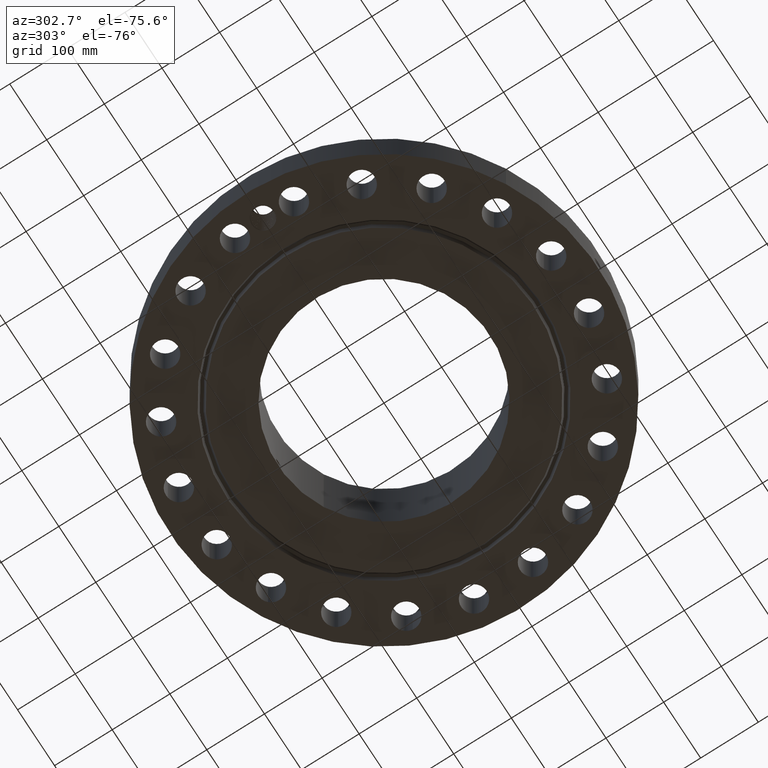
[diagram: clean part render]
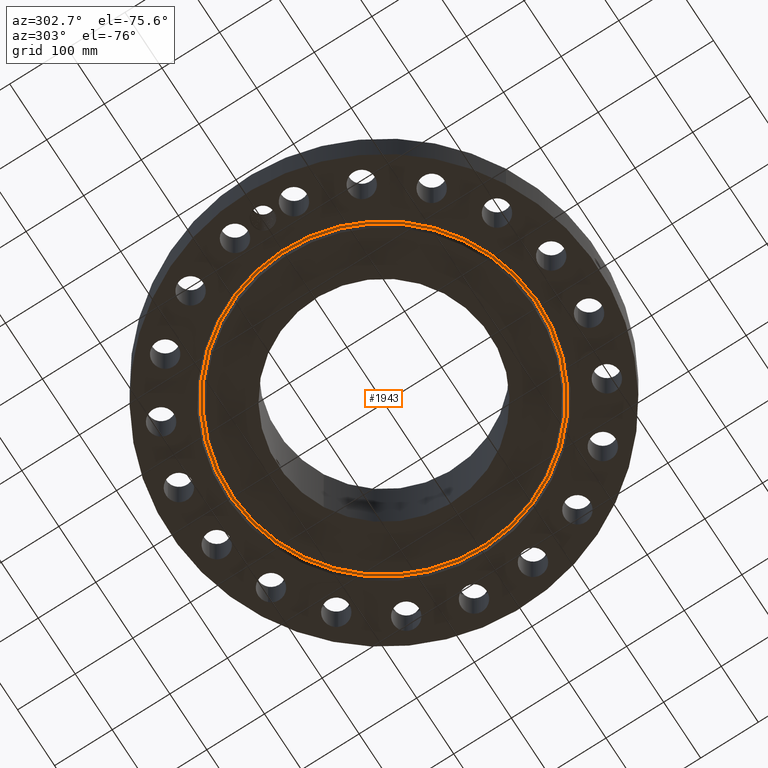
[diagram: same view with one face highlighted and labeled with its STEP entity id]
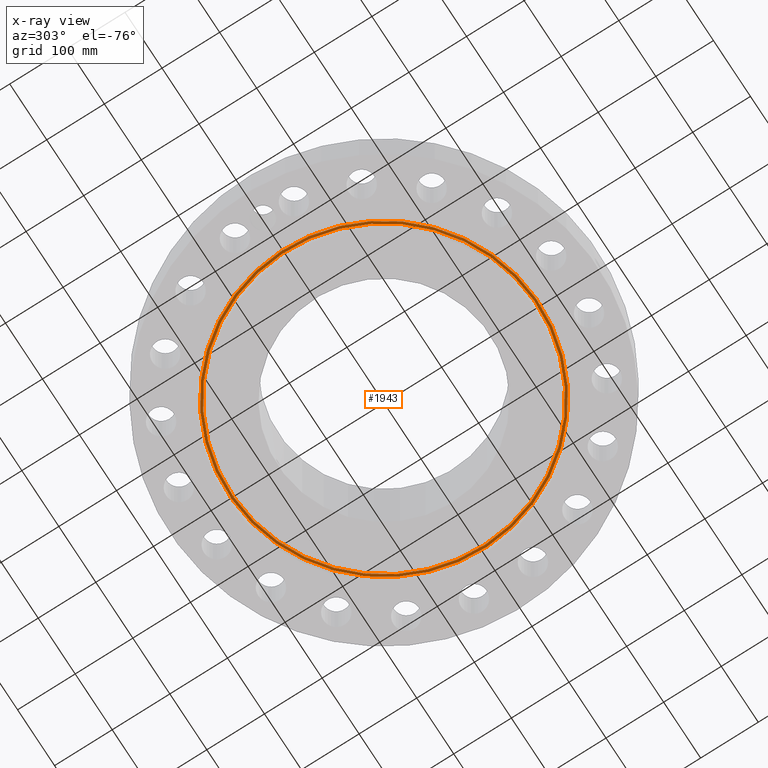
[diagram: x-ray of the same camera — body ghosted, the highlighted face saturated]
A machine part, auxiliary view. The second image highlights one B-rep face of the part: STEP entity #1943.
The next image is the same camera in x-ray: the body ghosted, the highlighted face saturated — about 0% of this face is hidden behind the body in this view.
In plain terms, the highlighted planar face has unit normal (0, 0, 1).
Its self-contained STEP definition (entity closure, byte-faithful):
#1407=AXIS2_PLACEMENT_3D('Circle Axis2P3D',#1405,#1406,$) ;
#1433=AXIS2_PLACEMENT_3D('Circle Axis2P3D',#1431,#1432,$) ;
#1919=AXIS2_PLACEMENT_3D('Plane Axis2P3D',#1916,#1917,#1918) ;
#1923=AXIS2_PLACEMENT_3D('Circle Axis2P3D',#1921,#1922,$) ;
#1932=AXIS2_PLACEMENT_3D('Circle Axis2P3D',#1930,#1931,$) ;
#1405=CARTESIAN_POINT('Axis2P3D Location',(0.,0.,0.312000000001)) ;
#1409=CARTESIAN_POINT('Vertex',(4.99455588084,-9.14247321528,0.312000000001)) ;
#1411=CARTESIAN_POINT('Vertex',(-4.99455588084,9.14247321528,0.312000000001)) ;
#1431=CARTESIAN_POINT('Axis2P3D Location',(0.,0.,0.312000000001)) ;
#1916=CARTESIAN_POINT('Axis2P3D Location',(0.,10.4177927095,0.312000000001)) ;
#1921=CARTESIAN_POINT('Axis2P3D Location',(0.,0.,0.312000000001)) ;
#1925=CARTESIAN_POINT('Vertex',(-5.07338042989,9.2867605845,0.312000000001)) ;
#1927=CARTESIAN_POINT('Vertex',(5.07338042989,-9.2867605845,0.312000000001)) ;
#1930=CARTESIAN_POINT('Axis2P3D Location',(0.,0.,0.312000000001)) ;
#1406=DIRECTION('Axis2P3D Direction',(0.,0.,0.0393700787402)) ;
#1432=DIRECTION('Axis2P3D Direction',(0.,0.,0.0393700787402)) ;
#1917=DIRECTION('Axis2P3D Direction',(0.,0.,0.0393700787402)) ;
#1918=DIRECTION('Axis2P3D XDirection',(0.0393700787402,0.,0.)) ;
#1922=DIRECTION('Axis2P3D Direction',(0.,0.,0.0393700787402)) ;
#1931=DIRECTION('Axis2P3D Direction',(0.,0.,0.0393700787402)) ;
#1936=ORIENTED_EDGE('',*,*,#1929,.F.) ;
#1937=ORIENTED_EDGE('',*,*,#1934,.F.) ;
#1940=ORIENTED_EDGE('',*,*,#1413,.T.) ;
#1941=ORIENTED_EDGE('',*,*,#1435,.T.) ;
#1942=FACE_BOUND('',#1939,.T.) ;
#1943=ADVANCED_FACE('PartBody',(#1938,#1942),#1920,.F.) ;
#1408=CIRCLE('generated circle',#1407,10.4177927095) ;
#1434=CIRCLE('generated circle',#1433,10.4177927095) ;
#1924=CIRCLE('generated circle',#1923,10.5822072905) ;
#1933=CIRCLE('generated circle',#1932,10.5822072905) ;
#1413=EDGE_CURVE('',#1410,#1412,#1408,.T.) ;
#1435=EDGE_CURVE('',#1412,#1410,#1434,.T.) ;
#1929=EDGE_CURVE('',#1926,#1928,#1924,.T.) ;
#1934=EDGE_CURVE('',#1928,#1926,#1933,.T.) ;
#1935=EDGE_LOOP('',(#1936,#1937)) ;
#1939=EDGE_LOOP('',(#1940,#1941)) ;
#1938=FACE_OUTER_BOUND('',#1935,.T.) ;
#1920=PLANE('',#1919) ;
#1410=VERTEX_POINT('',#1409) ;
#1412=VERTEX_POINT('',#1411) ;
#1926=VERTEX_POINT('',#1925) ;
#1928=VERTEX_POINT('',#1927) ;